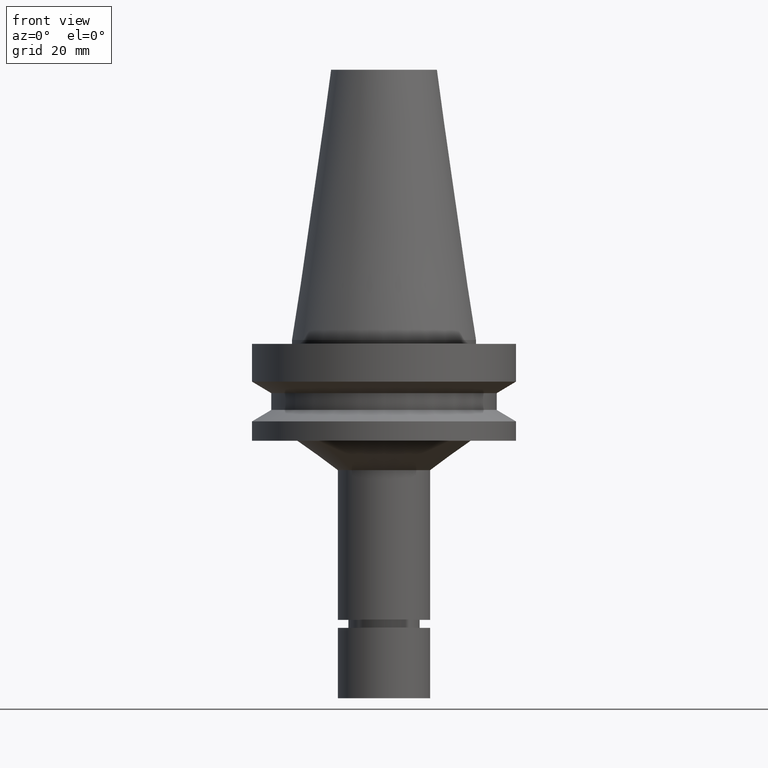
[diagram: clean part render]
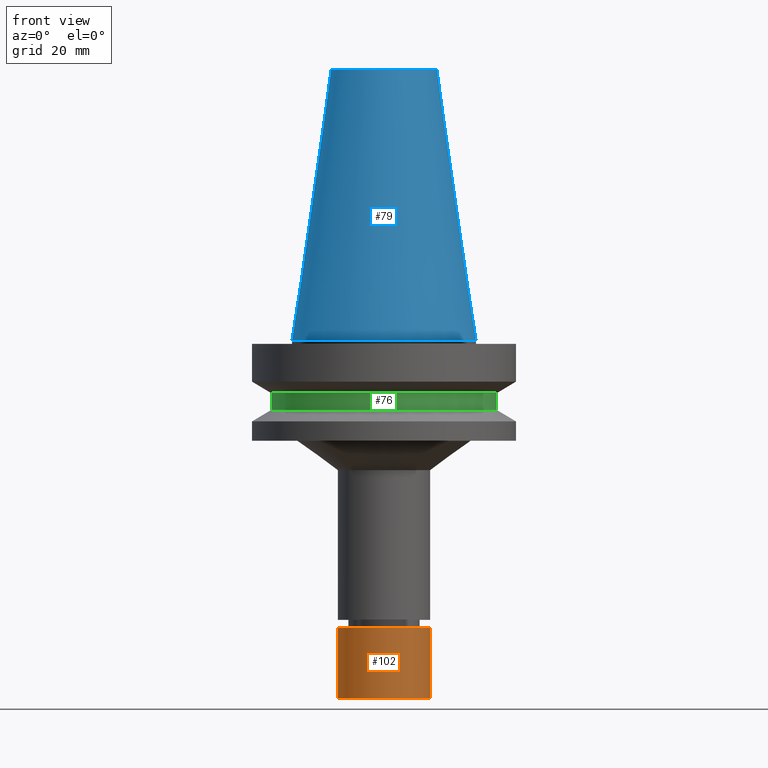
[diagram: same view with three faces highlighted in distinct colors, each labeled with its STEP entity id]
A machine part, front view with three faces highlighted in distinct colors.
Their STEP definitions:

[orange] entity #102 — the highlighted cylindrical surface (bore or boss wall) has radius 17.5 mm, axis along (0, 0, -1).
#102=ADVANCED_FACE('Unnamed[1]',(#242,#243),#244,.T.);
#112=EDGE_CURVE('Unnamed[1]',#258,#258,#259,.T.);
#140=EDGE_CURVE('Unnamed[1]',#300,#300,#301,.T.);
#242=FACE_BOUND('',#427,.T.);
#243=FACE_BOUND('',#428,.T.);
#244=CYLINDRICAL_SURFACE('',#429,17.5);
#258=VERTEX_POINT('',#447);
#259=CIRCLE('',#448,17.5);
#300=VERTEX_POINT('',#499);
#301=CIRCLE('',#500,17.5);
#427=EDGE_LOOP('',(#624));
#428=EDGE_LOOP('',(#625));
#429=AXIS2_PLACEMENT_3D('',#626,#627,#628);
#447=CARTESIAN_POINT('',(6.64370981970575E-015,17.5,-108.500015258789));
#448=AXIS2_PLACEMENT_3D('',#643,#644,#645);
#499=CARTESIAN_POINT('',(8.26636589424463E-015,17.5,-135.0));
#500=AXIS2_PLACEMENT_3D('',#688,#689,#690);
#624=ORIENTED_EDGE('',*,*,#140,.F.);
#625=ORIENTED_EDGE('',*,*,#112,.T.);
#626=CARTESIAN_POINT('',(7.45503785697519E-015,1.64377130870136E-014,-121.750007629394));
#627=DIRECTION('',(6.12323399573677E-017,1.52619998477336E-017,-1.0));
#628=DIRECTION('',(-5.76168069387474E-033,1.0,1.52619998477336E-017));
#643=CARTESIAN_POINT('',(6.64370981970575E-015,1.6235491705471E-014,-108.500015258789));
#644=DIRECTION('',(6.12323399573677E-017,1.52619998477336E-017,-1.0));
#645=DIRECTION('',(-5.76168069387474E-033,1.0,1.52619998477336E-017));
#688=CARTESIAN_POINT('',(8.26636589424463E-015,1.66399344685563E-014,-135.0));
#689=DIRECTION('',(6.12323399573677E-017,1.52619998477336E-017,-1.0));
#690=DIRECTION('',(-5.76168069387474E-033,1.0,1.52619998477336E-017));

[blue] entity #79 — the highlighted conical surface has half-angle 8.297 deg.
#79=ADVANCED_FACE('Unnamed[1]',(#207,#208),#209,.T.);
#94=EDGE_CURVE('Unnamed[1]',#230,#230,#231,.T.);
#168=EDGE_CURVE('Unnamed[1]',#344,#344,#345,.T.);
#207=FACE_BOUND('',#384,.T.);
#208=FACE_BOUND('',#385,.T.);
#209=CONICAL_SURFACE('',#386,27.5020833325942,0.144812498253157);
#230=VERTEX_POINT('',#412);
#231=CIRCLE('',#413,20.0791666651884);
#344=VERTEX_POINT('',#554);
#345=CIRCLE('',#555,34.925);
#384=EDGE_LOOP('',(#587));
#385=EDGE_LOOP('',(#588));
#386=AXIS2_PLACEMENT_3D('',#589,#590,#591);
#412=CARTESIAN_POINT('',(-6.23345220766003E-015,20.0791666651884,101.8));
#413=AXIS2_PLACEMENT_3D('',#611,#612,#613);
#554=CARTESIAN_POINT('',(-4.30483861169435E-031,34.925,4.27707894602213E-015));
#555=AXIS2_PLACEMENT_3D('',#738,#739,#740);
#587=ORIENTED_EDGE('',*,*,#94,.F.);
#588=ORIENTED_EDGE('',*,*,#168,.T.);
#589=CARTESIAN_POINT('',(-3.11672610383001E-015,1.38027286968626E-014,50.9));
#590=DIRECTION('',(6.12323399573677E-017,1.52619998477336E-017,-1.0));
#591=DIRECTION('',(-5.76168069387474E-033,1.0,1.52619998477336E-017));
#611=CARTESIAN_POINT('',(-6.23345220766003E-015,1.30258929046129E-014,101.8));
#612=DIRECTION('',(-6.12323399573677E-017,-1.52619998477336E-017,1.0));
#613=DIRECTION('',(-5.76168069387474E-033,1.0,1.52619998477336E-017));
#738=CARTESIAN_POINT('',(-1.79707006884519E-046,1.45795644891122E-014,1.78548169845537E-030));
#739=DIRECTION('',(-6.12323399573677E-017,-1.52619998477336E-017,1.0));
#740=DIRECTION('',(-5.76168069387474E-033,1.0,1.52619998477336E-017));

[green] entity #76 — the highlighted cylindrical surface (bore or boss wall) has radius 42.5 mm, axis along (-0, -0, 1).
#76=ADVANCED_FACE('Unnamed[1]',(#202,#203),#204,.T.);
#127=EDGE_CURVE('Unnamed[1]',#281,#281,#282,.T.);
#166=EDGE_CURVE('Unnamed[1]',#341,#341,#342,.T.);
#202=FACE_BOUND('',#378,.T.);
#203=FACE_BOUND('',#379,.T.);
#204=CYLINDRICAL_SURFACE('',#380,42.5);
#281=VERTEX_POINT('',#476);
#282=CIRCLE('',#477,42.5);
#341=VERTEX_POINT('',#550);
#342=CIRCLE('',#551,42.5);
#378=EDGE_LOOP('',(#581));
#379=EDGE_LOOP('',(#582));
#380=AXIS2_PLACEMENT_3D('',#583,#584,#585);
#476=CARTESIAN_POINT('',(1.61468902694397E-015,42.5,-26.3698729800001));
#477=AXIS2_PLACEMENT_3D('',#669,#670,#671);
#550=CARTESIAN_POINT('',(1.2264915470779E-015,42.5,-20.03012702));
#551=AXIS2_PLACEMENT_3D('',#735,#736,#737);
#581=ORIENTED_EDGE('',*,*,#166,.F.);
#582=ORIENTED_EDGE('',*,*,#127,.T.);
#583=CARTESIAN_POINT('',(1.42059028701093E-015,1.49336428855796E-014,-23.2));
#584=DIRECTION('',(-6.12323399573677E-017,-1.52619998477336E-017,1.0));
#585=DIRECTION('',(-5.76168069387474E-033,1.0,1.52619998477336E-017));
#669=CARTESIAN_POINT('',(1.61468902694397E-015,1.49820214865177E-014,-26.3698729800001));
#670=DIRECTION('',(-6.12323399573677E-017,-1.52619998477336E-017,1.0));
#671=DIRECTION('',(-5.76168069387474E-033,1.0,1.52619998477336E-017));
#735=CARTESIAN_POINT('',(1.2264915470779E-015,1.48852642846415E-014,-20.03012702));
#736=DIRECTION('',(-6.12323399573677E-017,-1.52619998477336E-017,1.0));
#737=DIRECTION('',(-5.76168069387474E-033,1.0,1.52619998477336E-017));